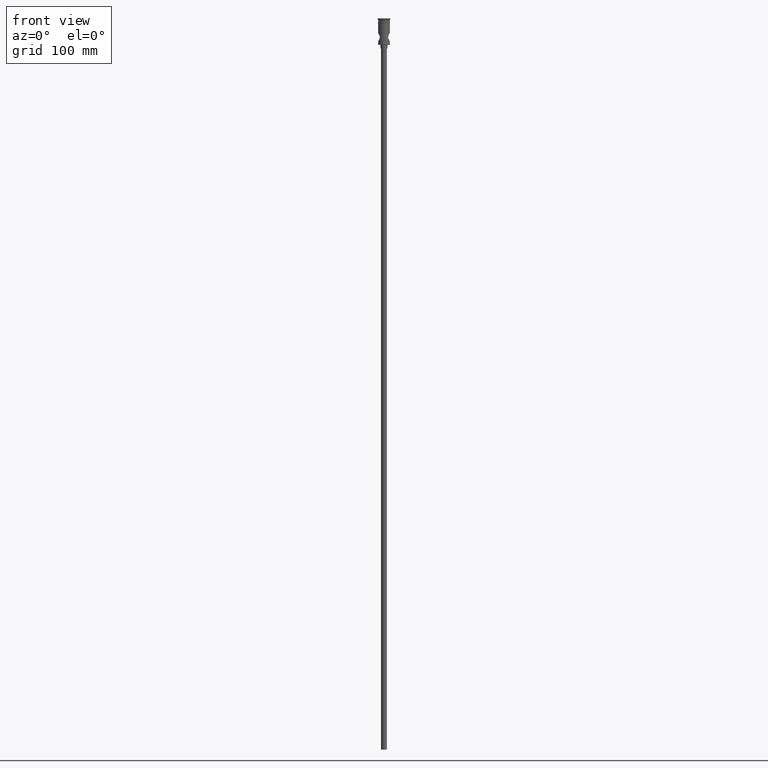
[diagram: clean part render]
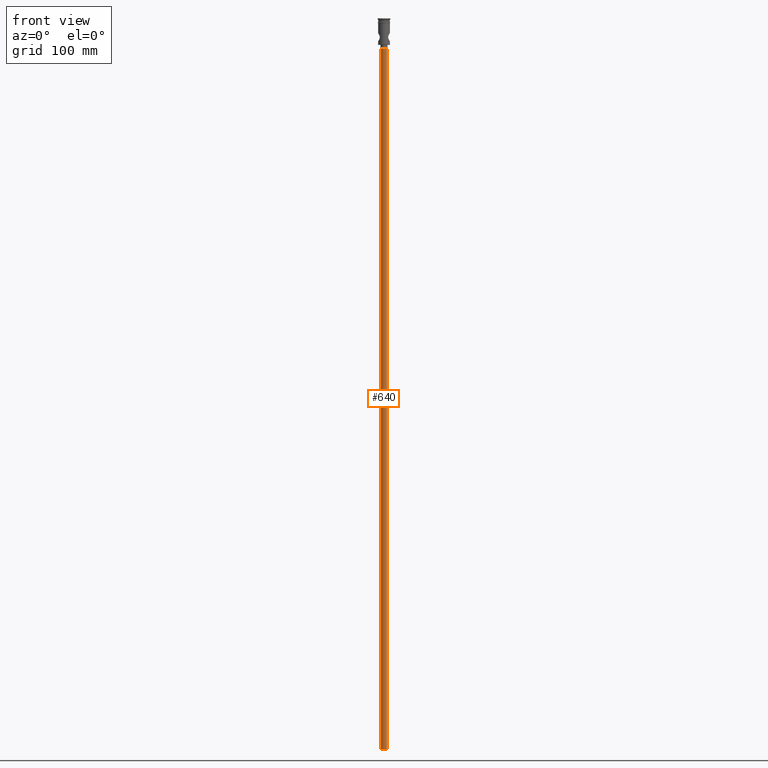
[diagram: same view with one face highlighted and labeled with its STEP entity id]
A machine part, front view. The second image highlights one B-rep face of the part: STEP entity #640.
In plain terms, the highlighted cylindrical surface (edge-blend (fillet) strip) has radius 2.5 mm, axis along (-0, -0, 1).
Its self-contained STEP definition (entity closure, byte-faithful):
#24 = CIRCLE ( 'NONE', #669, 2.500000000000000000 ) ;
#47 = CARTESIAN_POINT ( 'NONE',  ( 0.000000000000000000, 0.000000000000000000, -622.4999999999998863 ) ) ;
#63 = CARTESIAN_POINT ( 'NONE',  ( 2.500000000000000000, 0.000000000000000000, -25.50000000000000000 ) ) ;
#77 = DIRECTION ( 'NONE',  ( -0.000000000000000000, -0.000000000000000000, 1.000000000000000000 ) ) ;
#98 = AXIS2_PLACEMENT_3D ( 'NONE', #328, #873, #236 ) ;
#159 = DIRECTION ( 'NONE',  ( -1.000000000000000000, 0.000000000000000000, 0.000000000000000000 ) ) ;
#175 = LINE ( 'NONE', #644, #694 ) ;
#187 = CYLINDRICAL_SURFACE ( 'NONE', #98, 2.500000000000000000 ) ;
#197 = VERTEX_POINT ( 'NONE', #990 ) ;
#236 = DIRECTION ( 'NONE',  ( 1.000000000000000000, 0.000000000000000000, 0.000000000000000000 ) ) ;
#285 = DIRECTION ( 'NONE',  ( -0.000000000000000000, -0.000000000000000000, 1.000000000000000000 ) ) ;
#289 = CARTESIAN_POINT ( 'NONE',  ( 2.500000000000000000, 0.000000000000000000, -622.4999999999998863 ) ) ;
#294 = VERTEX_POINT ( 'NONE', #912 ) ;
#303 = ORIENTED_EDGE ( 'NONE', *, *, #1091, .T. ) ;
#328 = CARTESIAN_POINT ( 'NONE',  ( 0.000000000000000000, 0.000000000000000000, -622.4999999999998863 ) ) ;
#482 = DIRECTION ( 'NONE',  ( -1.000000000000000000, 0.000000000000000000, 0.000000000000000000 ) ) ;
#505 = DIRECTION ( 'NONE',  ( 0.000000000000000000, 0.000000000000000000, -1.000000000000000000 ) ) ;
#567 = VERTEX_POINT ( 'NONE', #289 ) ;
#627 = AXIS2_PLACEMENT_3D ( 'NONE', #1261, #946, #159 ) ;
#640 = ADVANCED_FACE ( 'NONE', ( #978 ), #187, .T. ) ;
#644 = CARTESIAN_POINT ( 'NONE',  ( -2.500000000000000000, 3.061616997868383141E-16, -622.4999999999998863 ) ) ;
#669 = AXIS2_PLACEMENT_3D ( 'NONE', #47, #505, #482 ) ;
#694 = VECTOR ( 'NONE', #77, 1000.000000000000000 ) ;
#771 = EDGE_CURVE ( 'NONE', #567, #294, #24, .T. ) ;
#873 = DIRECTION ( 'NONE',  ( -0.000000000000000000, -0.000000000000000000, 1.000000000000000000 ) ) ;
#883 = ORIENTED_EDGE ( 'NONE', *, *, #771, .F. ) ;
#889 = VERTEX_POINT ( 'NONE', #63 ) ;
#912 = CARTESIAN_POINT ( 'NONE',  ( -2.500000000000000000, 3.061616997868383141E-16, -622.4999999999998863 ) ) ;
#925 = ORIENTED_EDGE ( 'NONE', *, *, #1204, .T. ) ;
#930 = VECTOR ( 'NONE', #285, 1000.000000000000000 ) ;
#946 = DIRECTION ( 'NONE',  ( 0.000000000000000000, 0.000000000000000000, -1.000000000000000000 ) ) ;
#965 = ORIENTED_EDGE ( 'NONE', *, *, #1190, .F. ) ;
#975 = CIRCLE ( 'NONE', #627, 2.500000000000000000 ) ;
#978 = FACE_OUTER_BOUND ( 'NONE', #1033, .T. ) ;
#990 = CARTESIAN_POINT ( 'NONE',  ( -2.500000000000000000, 3.061616997868383141E-16, -25.50000000000000000 ) ) ;
#1033 = EDGE_LOOP ( 'NONE', ( #965, #883, #925, #303 ) ) ;
#1091 = EDGE_CURVE ( 'NONE', #889, #197, #975, .T. ) ;
#1189 = LINE ( 'NONE', #1287, #930 ) ;
#1190 = EDGE_CURVE ( 'NONE', #294, #197, #175, .T. ) ;
#1204 = EDGE_CURVE ( 'NONE', #567, #889, #1189, .T. ) ;
#1261 = CARTESIAN_POINT ( 'NONE',  ( 0.000000000000000000, 0.000000000000000000, -25.50000000000000000 ) ) ;
#1287 = CARTESIAN_POINT ( 'NONE',  ( 2.500000000000000000, 0.000000000000000000, -622.4999999999998863 ) ) ;